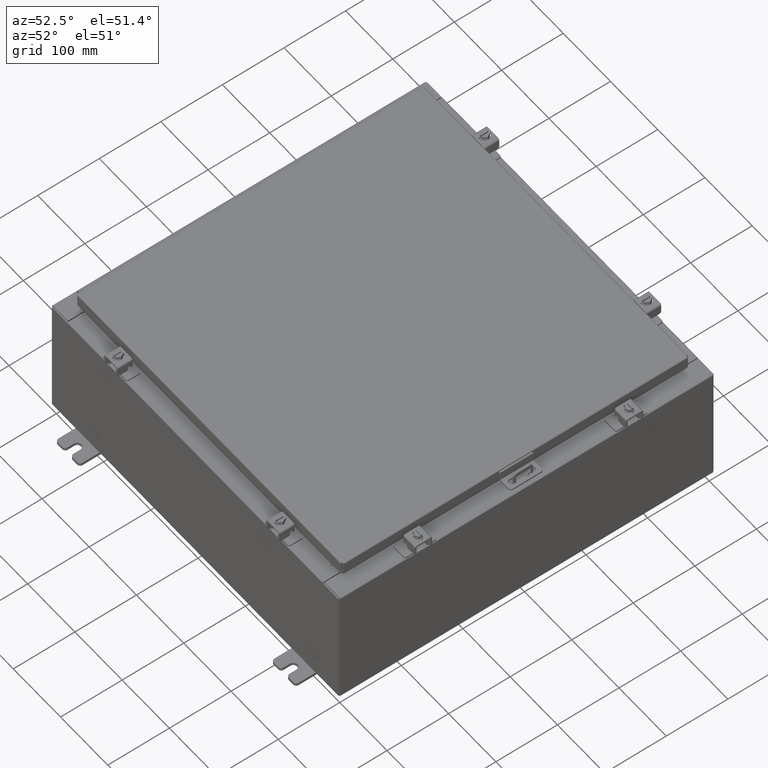
[diagram: clean part render]
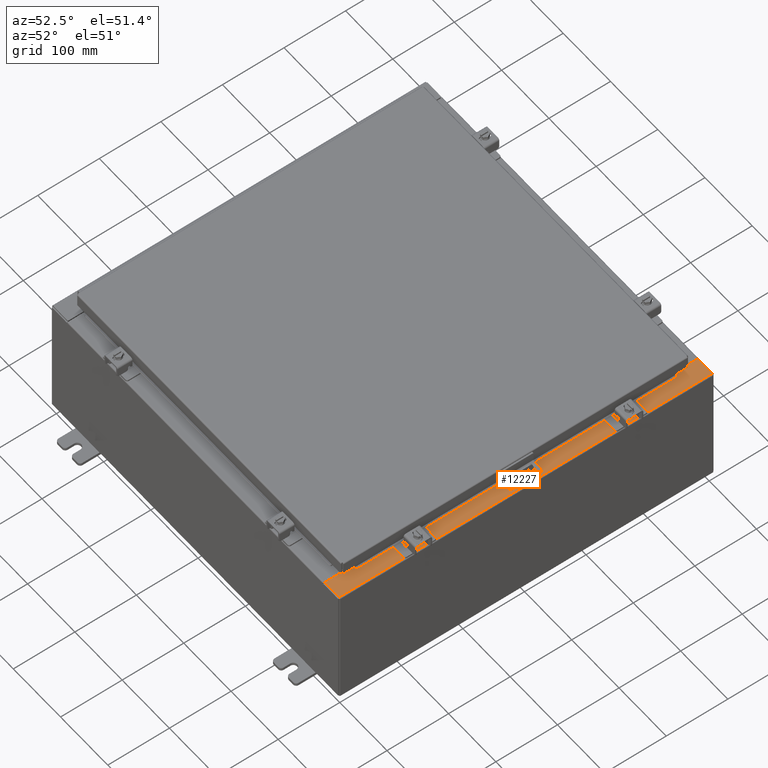
[diagram: same view with one face highlighted and labeled with its STEP entity id]
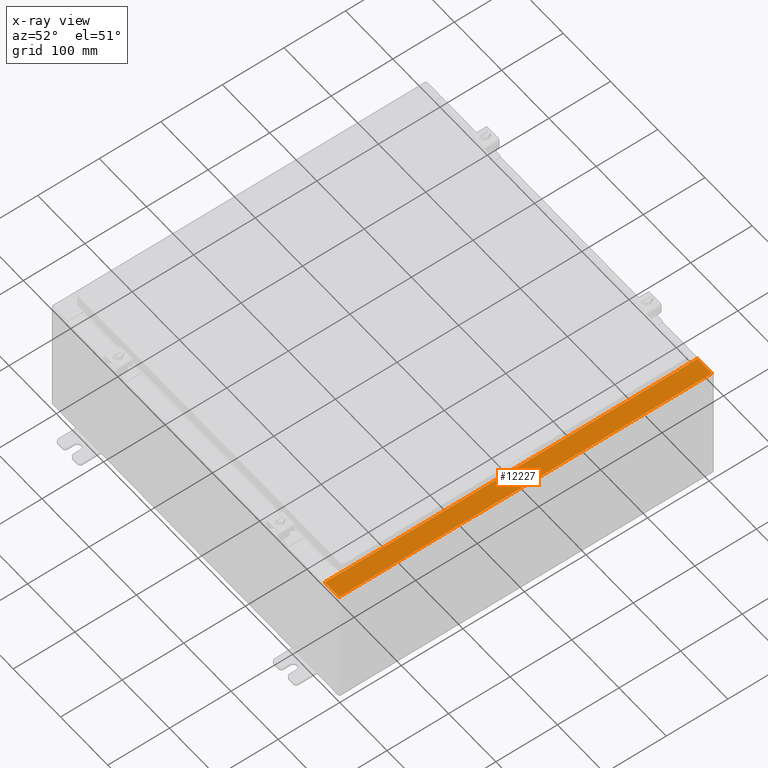
[diagram: x-ray of the same camera — body ghosted, the highlighted face saturated]
A machine part, auxiliary view. The second image highlights one B-rep face of the part: STEP entity #12227.
The next image is the same camera in x-ray: the body ghosted, the highlighted face saturated — about 0% of this face is hidden behind the body in this view.
In plain terms, the highlighted planar face has unit normal (-0, -0, -1).
Its self-contained STEP definition (entity closure, byte-faithful):
#77 = LINE ( 'NONE', #15866, #25513 ) ;
#225 = VERTEX_POINT ( 'NONE', #26957 ) ;
#479 = LINE ( 'NONE', #1965, #20794 ) ;
#536 = VERTEX_POINT ( 'NONE', #20170 ) ;
#728 = EDGE_CURVE ( 'NONE', #20362, #536, #1820, .T. ) ;
#1181 = ORIENTED_EDGE ( 'NONE', *, *, #23570, .F. ) ;
#1209 = DIRECTION ( 'NONE',  ( 1.000000000000000000, 0.0000000000000000000, 0.0000000000000000000 ) ) ;
#1820 = LINE ( 'NONE', #18259, #14576 ) ;
#1965 = CARTESIAN_POINT ( 'NONE',  ( 10.71270000000003000, -10.59374999999999800, 7.925300000000009800 ) ) ;
#2151 = ORIENTED_EDGE ( 'NONE', *, *, #25999, .F. ) ;
#3121 = CARTESIAN_POINT ( 'NONE',  ( 10.69970000000002800, 3.631055805840126200E-016, 7.925300000000008900 ) ) ;
#3212 = ORIENTED_EDGE ( 'NONE', *, *, #22526, .T. ) ;
#3273 = VECTOR ( 'NONE', #18486, 39.37007874015748100 ) ;
#3395 = VECTOR ( 'NONE', #19326, 39.37007874015748100 ) ;
#3485 = DIRECTION ( 'NONE',  ( -9.163200904511462000E-017, -1.000000000000000000, 4.581600452255787700E-017 ) ) ;
#3858 = LINE ( 'NONE', #20937, #30132 ) ;
#3861 = ORIENTED_EDGE ( 'NONE', *, *, #11648, .T. ) ;
#4033 = ORIENTED_EDGE ( 'NONE', *, *, #29759, .F. ) ;
#4589 = CARTESIAN_POINT ( 'NONE',  ( 10.69970000000002800, 10.63109999999998600, 7.925300000000008900 ) ) ;
#4908 = ORIENTED_EDGE ( 'NONE', *, *, #20227, .F. ) ;
#5834 = DIRECTION ( 'NONE',  ( 1.000000000000000000, 0.0000000000000000000, -6.241167087353087800E-015 ) ) ;
#6407 = ORIENTED_EDGE ( 'NONE', *, *, #31395, .T. ) ;
#7237 = VERTEX_POINT ( 'NONE', #14809 ) ;
#7273 = VERTEX_POINT ( 'NONE', #20042 ) ;
#7970 = VERTEX_POINT ( 'NONE', #12443 ) ;
#8014 = VERTEX_POINT ( 'NONE', #20322 ) ;
#9421 = CARTESIAN_POINT ( 'NONE',  ( 10.69970000000002800, 3.631055805840126200E-016, 7.925300000000008900 ) ) ;
#9847 = DIRECTION ( 'NONE',  ( 6.241167087353086200E-015, 4.581600452255730400E-017, 1.000000000000000000 ) ) ;
#10001 = EDGE_CURVE ( 'NONE', #10055, #11335, #31262, .T. ) ;
#10055 = VERTEX_POINT ( 'NONE', #24868 ) ;
#10171 = EDGE_LOOP ( 'NONE', ( #22932, #3861, #6407, #30999, #3212, #25145, #13145, #4033, #4908, #2151, #1181, #29211 ) ) ;
#10648 = PLANE ( 'NONE',  #21271 ) ;
#11335 = VERTEX_POINT ( 'NONE', #4589 ) ;
#11648 = EDGE_CURVE ( 'NONE', #13606, #8014, #22776, .T. ) ;
#12010 = DIRECTION ( 'NONE',  ( -4.379057701015054300E-047, -1.000000000000000000, 4.581600452255731000E-017 ) ) ;
#12227 = ADVANCED_FACE ( 'NONE', ( #20364 ), #10648, .F. ) ;
#12240 = DIRECTION ( 'NONE',  ( -0.0000000000000000000, 1.000000000000000000, -0.0000000000000000000 ) ) ;
#12443 = CARTESIAN_POINT ( 'NONE',  ( 10.71270000000003000, 10.59374999999998400, 7.925300000000009800 ) ) ;
#13145 = ORIENTED_EDGE ( 'NONE', *, *, #22261, .F. ) ;
#13232 = DIRECTION ( 'NONE',  ( -6.241167087353086200E-015, -4.581600452255731000E-017, -1.000000000000000000 ) ) ;
#13606 = VERTEX_POINT ( 'NONE', #27712 ) ;
#14380 = CARTESIAN_POINT ( 'NONE',  ( 11.91230000000002900, 11.92529999999999600, 7.925300000000000000 ) ) ;
#14576 = VECTOR ( 'NONE', #3485, 39.37007874015748100 ) ;
#14809 = CARTESIAN_POINT ( 'NONE',  ( 10.71270000000003000, -10.59375000000000200, 7.925300000000009800 ) ) ;
#15665 = AXIS2_PLACEMENT_3D ( 'NONE', #25080, #9847, #27682 ) ;
#15866 = CARTESIAN_POINT ( 'NONE',  ( 10.69970000000002800, -10.63110000000000200, 7.925300000000008900 ) ) ;
#16473 = DIRECTION ( 'NONE',  ( 6.241167087353086200E-015, 4.581600452255730400E-017, 1.000000000000000000 ) ) ;
#17001 = VECTOR ( 'NONE', #22271, 39.37007874015748100 ) ;
#17243 = VECTOR ( 'NONE', #5834, 39.37007874015748100 ) ;
#17807 = LINE ( 'NONE', #23806, #29736 ) ;
#18259 = CARTESIAN_POINT ( 'NONE',  ( 11.91230000000002700, -11.92530000000000400, 7.925300000000000900 ) ) ;
#18437 = DIRECTION ( 'NONE',  ( 1.000000000000000000, 0.0000000000000000000, 2.170286390199955400E-014 ) ) ;
#18486 = DIRECTION ( 'NONE',  ( -4.379057701015054300E-047, -1.000000000000000000, 4.581600452255731000E-017 ) ) ;
#19137 = EDGE_CURVE ( 'NONE', #22400, #225, #21070, .T. ) ;
#19221 = CARTESIAN_POINT ( 'NONE',  ( 10.75005000000003000, -10.59375000000000200, 7.925300000000009800 ) ) ;
#19290 = CARTESIAN_POINT ( 'NONE',  ( 10.75005000000003000, -10.63110000000000200, 7.925300000000008900 ) ) ;
#19326 = DIRECTION ( 'NONE',  ( -1.000000000000000000, 0.0000000000000000000, 0.0000000000000000000 ) ) ;
#19740 = CARTESIAN_POINT ( 'NONE',  ( 4.972393517345230000E-014, 11.92529999999999600, 7.925300000000075500 ) ) ;
#20042 = CARTESIAN_POINT ( 'NONE',  ( 10.75005000000003000, 10.59374999999998400, 7.925300000000007100 ) ) ;
#20170 = CARTESIAN_POINT ( 'NONE',  ( 11.91230000000002900, -11.92530000000000400, 7.925300000000000900 ) ) ;
#20227 = EDGE_CURVE ( 'NONE', #7970, #7273, #17807, .T. ) ;
#20322 = CARTESIAN_POINT ( 'NONE',  ( 10.69970000000002800, -11.92530000000000400, 7.925300000000009800 ) ) ;
#20362 = VERTEX_POINT ( 'NONE', #14380 ) ;
#20364 = FACE_OUTER_BOUND ( 'NONE', #10171, .T. ) ;
#20794 = VECTOR ( 'NONE', #12240, 39.37007874015748100 ) ;
#20937 = CARTESIAN_POINT ( 'NONE',  ( 10.75005000000003000, 10.63109999999998400, 7.925300000000009800 ) ) ;
#21070 = CIRCLE ( 'NONE', #15665, 0.01867499999999949400 ) ;
#21087 = CARTESIAN_POINT ( 'NONE',  ( 4.972393517345230000E-014, -11.92530000000000400, 7.925300000000076400 ) ) ;
#21271 = AXIS2_PLACEMENT_3D ( 'NONE', #28469, #13232, #30991 ) ;
#21730 = CIRCLE ( 'NONE', #26836, 0.01867499999999949400 ) ;
#22261 = EDGE_CURVE ( 'NONE', #28710, #11335, #3858, .T. ) ;
#22271 = DIRECTION ( 'NONE',  ( -1.000000000000000000, 0.0000000000000000000, 6.241167087353087800E-015 ) ) ;
#22400 = VERTEX_POINT ( 'NONE', #19290 ) ;
#22526 = EDGE_CURVE ( 'NONE', #20362, #10055, #23738, .T. ) ;
#22630 = CARTESIAN_POINT ( 'NONE',  ( 10.75005000000003000, 10.63109999999998400, 7.925300000000008900 ) ) ;
#22776 = LINE ( 'NONE', #3121, #3273 ) ;
#22932 = ORIENTED_EDGE ( 'NONE', *, *, #26275, .F. ) ;
#23570 = EDGE_CURVE ( 'NONE', #225, #7237, #30466, .T. ) ;
#23738 = LINE ( 'NONE', #19740, #17001 ) ;
#23806 = CARTESIAN_POINT ( 'NONE',  ( 10.71270000000003000, 10.59374999999998400, 7.925300000000009800 ) ) ;
#24473 = VECTOR ( 'NONE', #12010, 39.37007874015748100 ) ;
#24868 = CARTESIAN_POINT ( 'NONE',  ( 10.69970000000002800, 11.92529999999999600, 7.925300000000008900 ) ) ;
#25080 = CARTESIAN_POINT ( 'NONE',  ( 10.75005000000003000, -10.61242500000000200, 7.925300000000009800 ) ) ;
#25145 = ORIENTED_EDGE ( 'NONE', *, *, #10001, .T. ) ;
#25513 = VECTOR ( 'NONE', #18437, 39.37007874015748100 ) ;
#25999 = EDGE_CURVE ( 'NONE', #7237, #7970, #479, .T. ) ;
#26275 = EDGE_CURVE ( 'NONE', #13606, #22400, #77, .T. ) ;
#26371 = DIRECTION ( 'NONE',  ( 1.000000000000000000, 0.0000000000000000000, 0.0000000000000000000 ) ) ;
#26836 = AXIS2_PLACEMENT_3D ( 'NONE', #31696, #16473, #1209 ) ;
#26957 = CARTESIAN_POINT ( 'NONE',  ( 10.75005000000003000, -10.59375000000000200, 7.925300000000008900 ) ) ;
#27682 = DIRECTION ( 'NONE',  ( 1.000000000000000000, 0.0000000000000000000, 0.0000000000000000000 ) ) ;
#27712 = CARTESIAN_POINT ( 'NONE',  ( 10.69970000000002800, -10.63110000000000200, 7.925300000000008900 ) ) ;
#28469 = CARTESIAN_POINT ( 'NONE',  ( 4.972393517345230000E-014, 3.631055805840126200E-016, 7.925300000000075500 ) ) ;
#28602 = DIRECTION ( 'NONE',  ( -1.000000000000000000, 0.0000000000000000000, -2.170286390199955400E-014 ) ) ;
#28710 = VERTEX_POINT ( 'NONE', #22630 ) ;
#29211 = ORIENTED_EDGE ( 'NONE', *, *, #19137, .F. ) ;
#29736 = VECTOR ( 'NONE', #26371, 39.37007874015748100 ) ;
#29759 = EDGE_CURVE ( 'NONE', #7273, #28710, #21730, .T. ) ;
#30132 = VECTOR ( 'NONE', #28602, 39.37007874015748100 ) ;
#30466 = LINE ( 'NONE', #19221, #3395 ) ;
#30754 = LINE ( 'NONE', #21087, #17243 ) ;
#30991 = DIRECTION ( 'NONE',  ( -1.000000000000000000, 0.0000000000000000000, 6.241167087353086200E-015 ) ) ;
#30999 = ORIENTED_EDGE ( 'NONE', *, *, #728, .F. ) ;
#31262 = LINE ( 'NONE', #9421, #24473 ) ;
#31395 = EDGE_CURVE ( 'NONE', #8014, #536, #30754, .T. ) ;
#31696 = CARTESIAN_POINT ( 'NONE',  ( 10.75005000000003000, 10.61242499999998400, 7.925300000000009800 ) ) ;